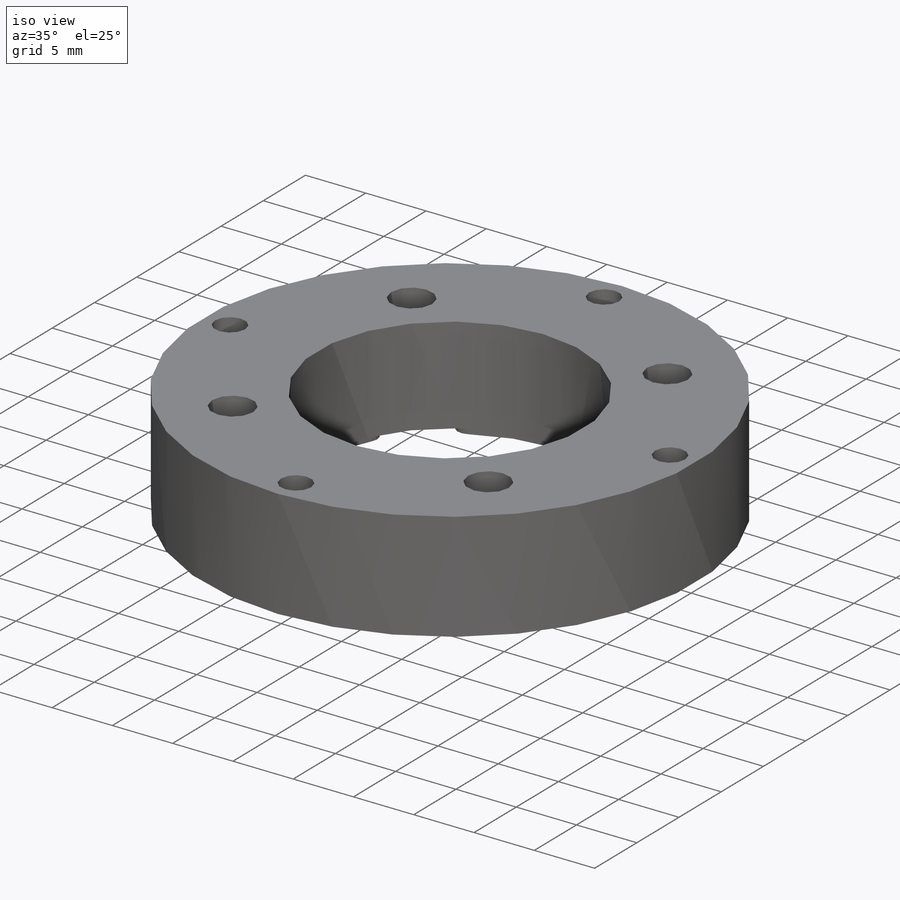
[diagram: iso view]
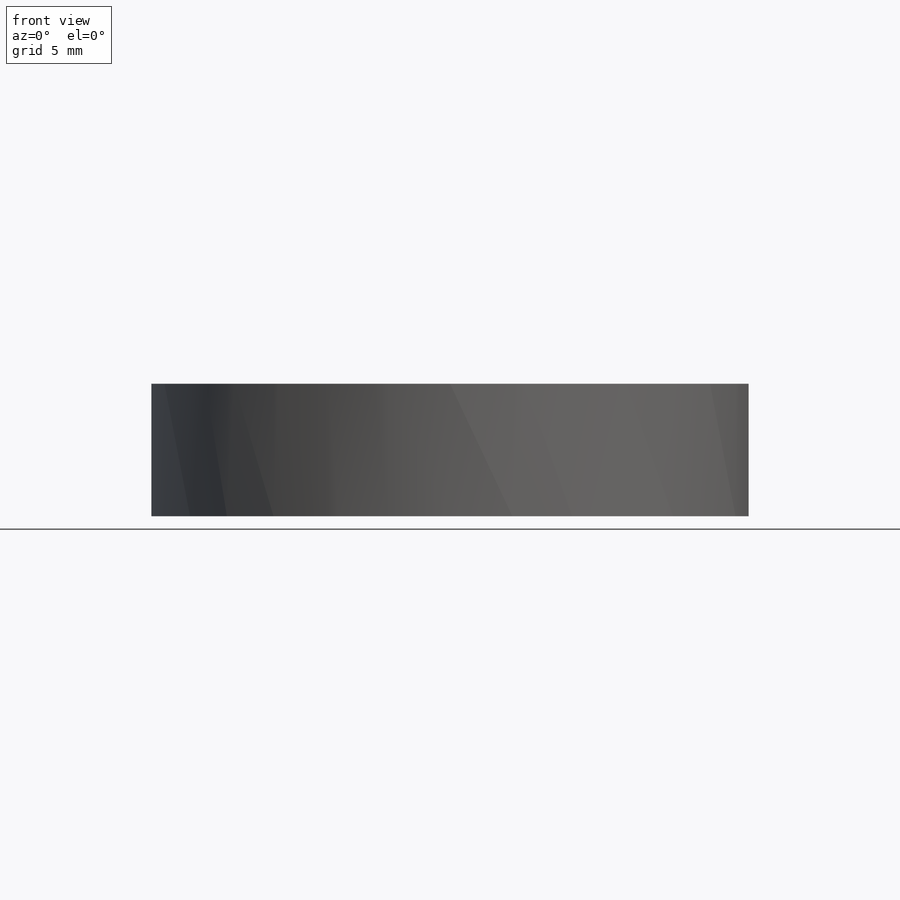
[diagram: front view]
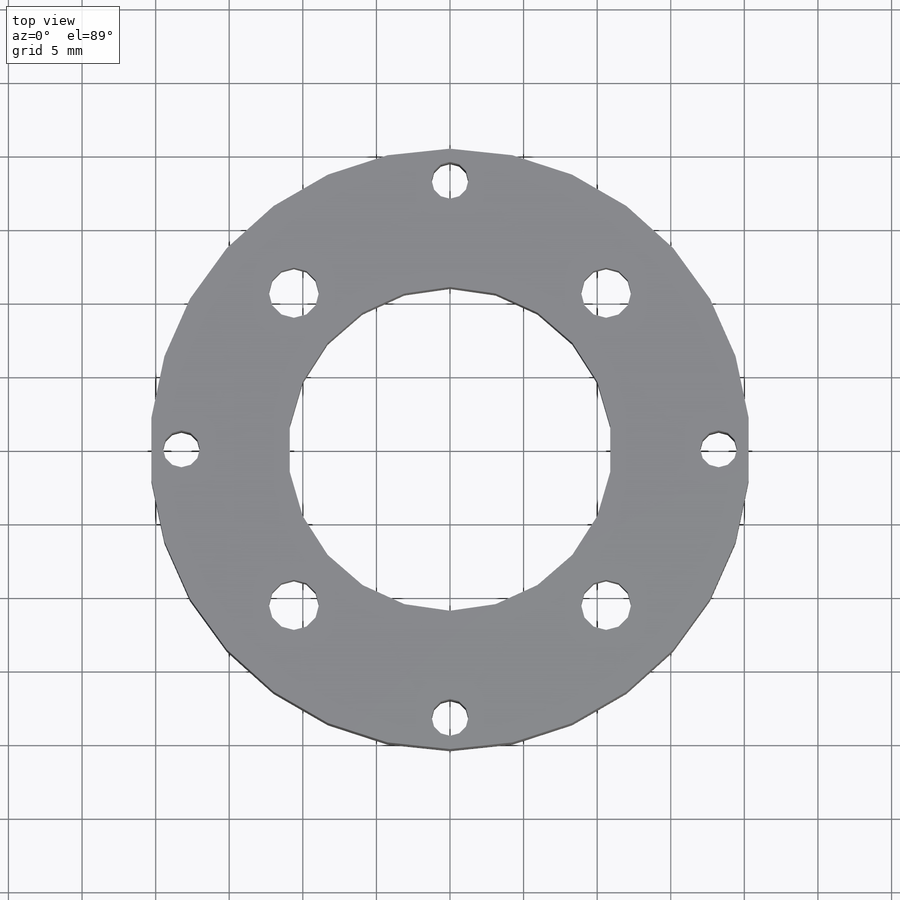
[diagram: top view]
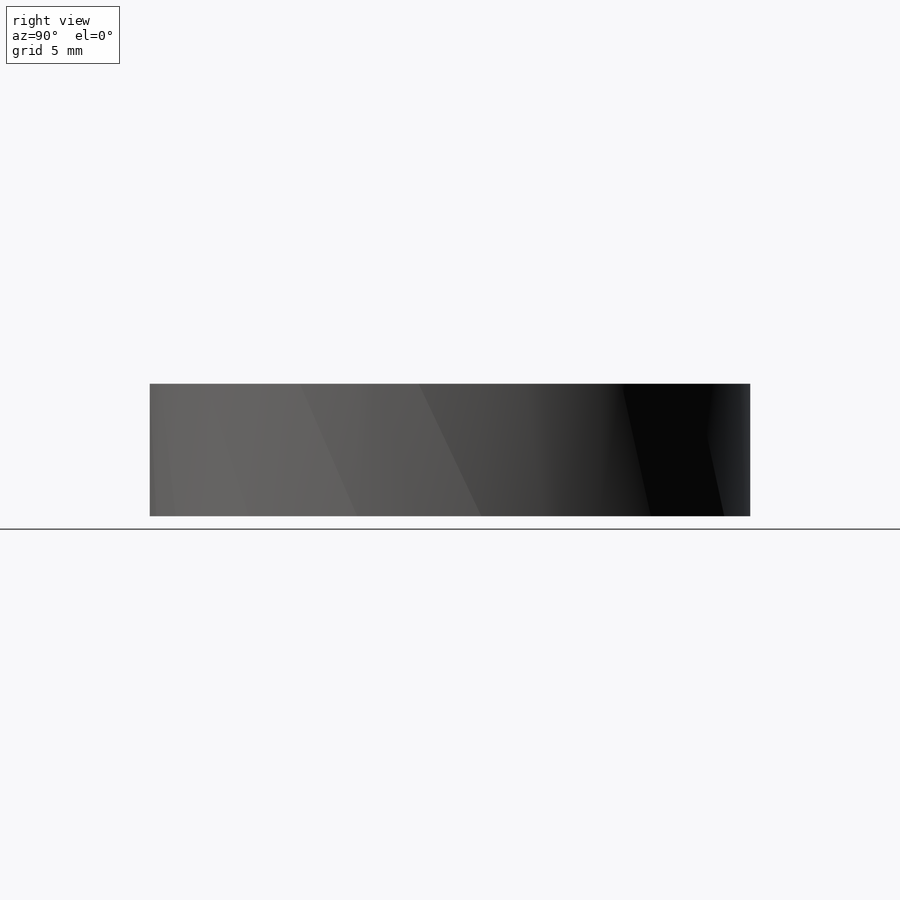
[diagram: right view]
SOLIDWORKS PART (.sldprt)
format: sldprt  version: not decoded by parser v0  size: 555,520 bytes
history: native  units: mm
features: sketch x8, thread x4, hole x2, material x1, extrude x1, cut_extrude x1, fillet x1 (+11 scaffold rows collapsed)
feature tree (29):
  scaffold x11  (default folders/planes/origin — collapsed)
  material  "3.1355 (EN-AW 2024)"
  sketch  "Эскиз1"  dims[D1=40.8mm D2=22.0mm]
  extrude  "Бобышка-Вытянуть1"  Depth=5mm
  sketch  "Эскиз2"  dims[D1=~3.994626mm]
  hole  "Отверстие обработанное метчиком M3x0.51"  [1 undecoded]
  sketch  "Эскиз5"
  sketch  "Эскиз4"  dims[hole-wizard template sketch: 60 standard entries collapsed; hole parameters kept: c18.Глубина проходного сверла=5.0mm]
  thread  "Отверстие резьбы1"  Diameter=3mm  [1 undecoded]
  thread  "Отверстие резьбы2"  Diameter=3mm  [1 undecoded]
  thread  "Отверстие резьбы3"  Diameter=3mm  [1 undecoded]
  thread  "Отверстие резьбы4"  Diameter=3mm  [1 undecoded]
  sketch  "Эскиз6"  dims[c1.D1=30.0mm c1.D2=~10.589832mm c2.D2=45.0deg c2.D3=4.0]
  hole  "Цековка для винта с внутренним шестигранником M31"  [1 undecoded]
  sketch  "Эскиз8"
  sketch  "Эскиз7"  dims[hole-wizard template sketch: 42 standard entries collapsed; hole parameters kept: c12.Глубина сквозного отверстия=5.0mm c12.Диаметр цековки=6.5mm c12.Глубина цековки=3.0mm]
  sketch  "Эскиз9"  dims[D1=24.5mm]
  cut_extrude  "Вырез-Вытянуть1"  Depth=1mm
  fillet  "Скругление1"  Radius=1mm
decode coverage: 13 of 17 modeling features carry decoded parameters
note: ~ marks probable driven/reference dimensions
note: 6 parameter values undecoded
note: suppression state not decoded; provenance and decode notes live in map.json
